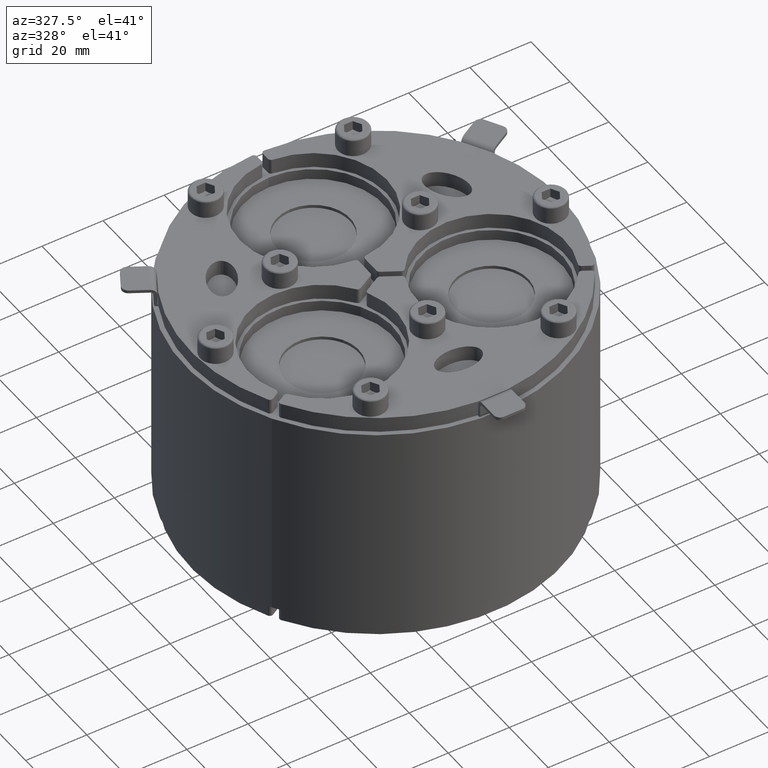
[diagram: clean part render]
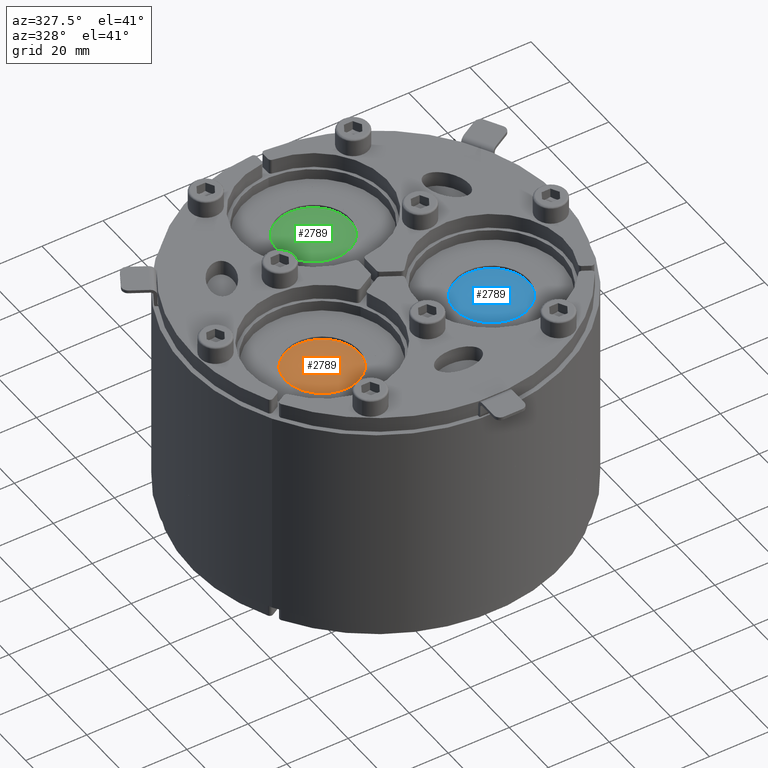
[diagram: same view with three faces highlighted in distinct colors, each labeled with its STEP entity id]
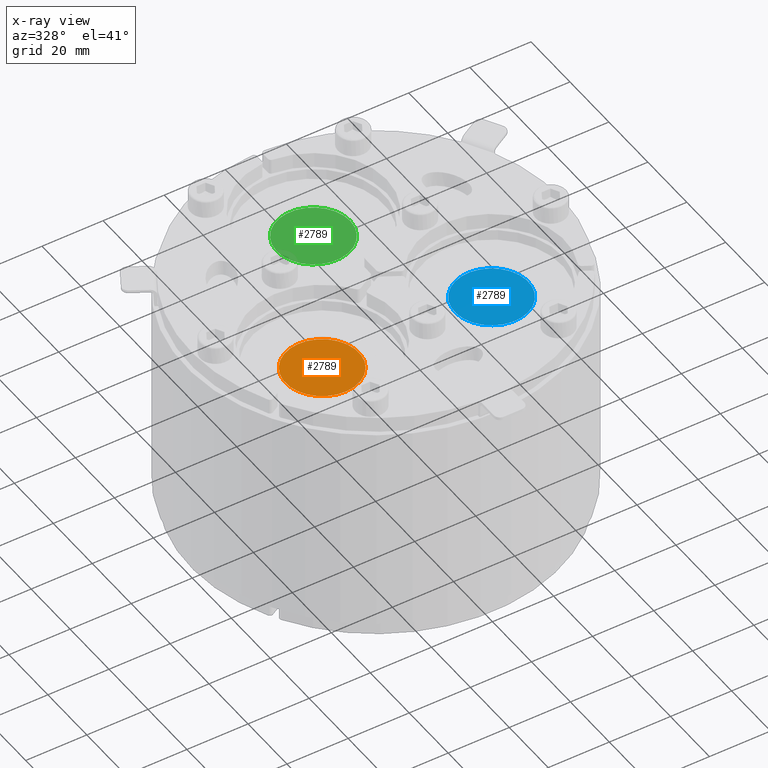
[diagram: x-ray of the same camera — body ghosted, the three highlighted faces saturated]
A machine part, auxiliary view with three faces highlighted in distinct colors.
The next image is the same camera in x-ray (body ghosted, the three faces saturated) — at least one of them is partly hidden behind the body in this view.
Their STEP definitions:

[orange] entity #2789 — the highlighted planar face has unit normal (0, 0, 1).
#306=PLANE('',#3321);
#469=FACE_OUTER_BOUND('',#654,.T.);
#654=EDGE_LOOP('',(#2563));
#1232=CIRCLE('',#3319,12.);
#1468=VERTEX_POINT('',#5049);
#1832=EDGE_CURVE('',#1468,#1468,#1232,.T.);
#2563=ORIENTED_EDGE('',*,*,#1832,.T.);
#2789=ADVANCED_FACE('',(#469),#306,.T.);
#3319=AXIS2_PLACEMENT_3D('',#5050,#4187,#4188);
#3321=AXIS2_PLACEMENT_3D('',#5054,#4192,#4193);
#4187=DIRECTION('center_axis',(0.,1.,0.));
#4188=DIRECTION('ref_axis',(1.,0.,0.));
#4192=DIRECTION('center_axis',(0.,1.,0.));
#4193=DIRECTION('ref_axis',(0.,0.,1.));
#5049=CARTESIAN_POINT('',(-12.,60.,1.46957615897682E-15));
#5050=CARTESIAN_POINT('Origin',(0.,60.,0.));
#5054=CARTESIAN_POINT('Origin',(7.39255249150933E-16,60.,-3.08395284618099E-16));

[blue] entity #2789 — the highlighted planar face has unit normal (-0, 0, 1).
#306=PLANE('',#3321);
#469=FACE_OUTER_BOUND('',#654,.T.);
#654=EDGE_LOOP('',(#2563));
#1232=CIRCLE('',#3319,12.);
#1468=VERTEX_POINT('',#5049);
#1832=EDGE_CURVE('',#1468,#1468,#1232,.T.);
#2563=ORIENTED_EDGE('',*,*,#1832,.T.);
#2789=ADVANCED_FACE('',(#469),#306,.T.);
#3319=AXIS2_PLACEMENT_3D('',#5050,#4187,#4188);
#3321=AXIS2_PLACEMENT_3D('',#5054,#4192,#4193);
#4187=DIRECTION('center_axis',(0.,1.,0.));
#4188=DIRECTION('ref_axis',(1.,0.,0.));
#4192=DIRECTION('center_axis',(0.,1.,0.));
#4193=DIRECTION('ref_axis',(0.,0.,1.));
#5049=CARTESIAN_POINT('',(-12.,60.,1.46957615897682E-15));
#5050=CARTESIAN_POINT('Origin',(0.,60.,0.));
#5054=CARTESIAN_POINT('Origin',(7.39255249150933E-16,60.,-3.08395284618099E-16));

[green] entity #2789 — the highlighted planar face has unit normal (0, -0, 1).
#306=PLANE('',#3321);
#469=FACE_OUTER_BOUND('',#654,.T.);
#654=EDGE_LOOP('',(#2563));
#1232=CIRCLE('',#3319,12.);
#1468=VERTEX_POINT('',#5049);
#1832=EDGE_CURVE('',#1468,#1468,#1232,.T.);
#2563=ORIENTED_EDGE('',*,*,#1832,.T.);
#2789=ADVANCED_FACE('',(#469),#306,.T.);
#3319=AXIS2_PLACEMENT_3D('',#5050,#4187,#4188);
#3321=AXIS2_PLACEMENT_3D('',#5054,#4192,#4193);
#4187=DIRECTION('center_axis',(0.,1.,0.));
#4188=DIRECTION('ref_axis',(1.,0.,0.));
#4192=DIRECTION('center_axis',(0.,1.,0.));
#4193=DIRECTION('ref_axis',(0.,0.,1.));
#5049=CARTESIAN_POINT('',(-12.,60.,1.46957615897682E-15));
#5050=CARTESIAN_POINT('Origin',(0.,60.,0.));
#5054=CARTESIAN_POINT('Origin',(7.39255249150933E-16,60.,-3.08395284618099E-16));